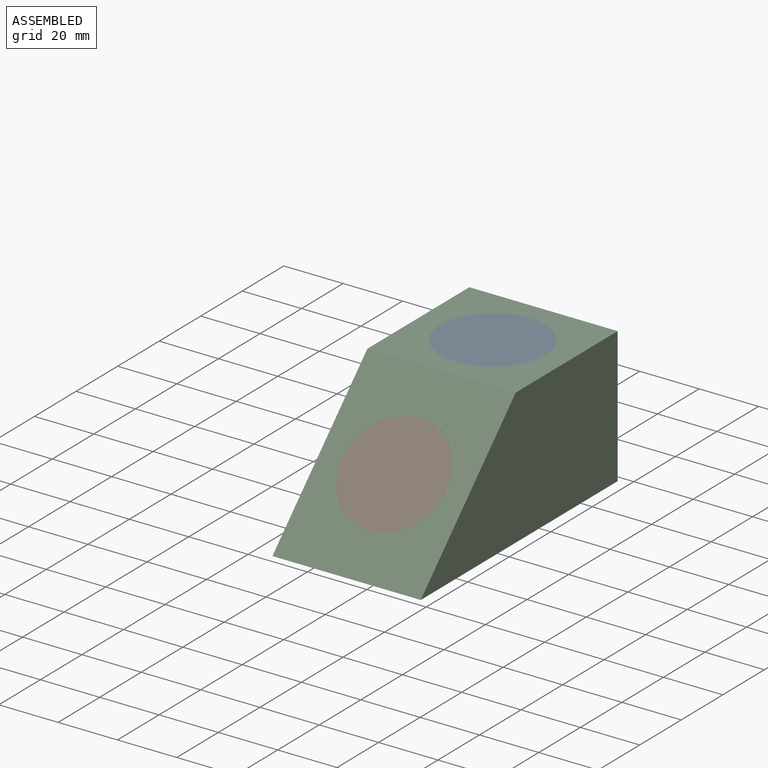
[diagram: assembled view]
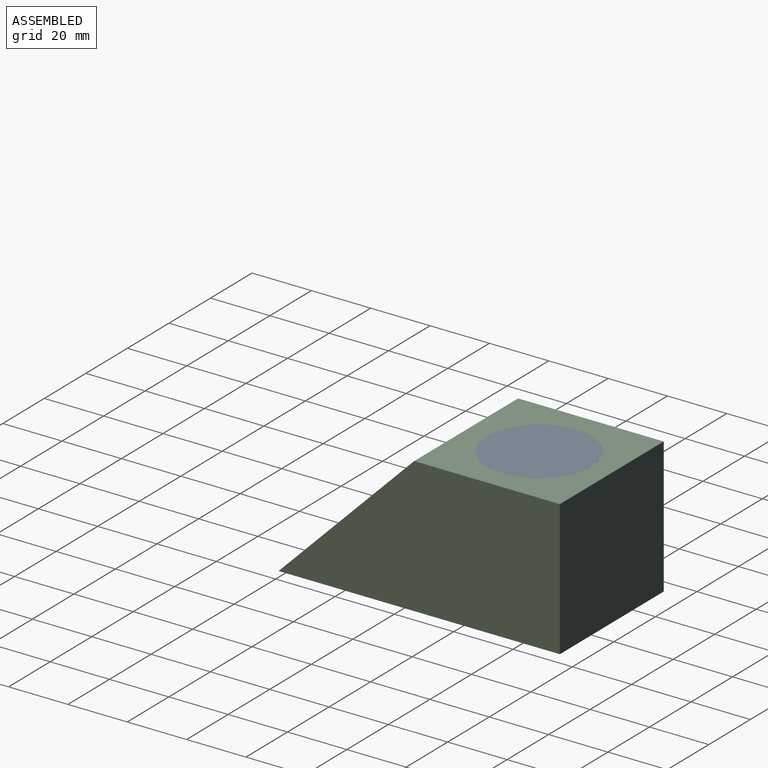
[diagram: assembled view, second angle]
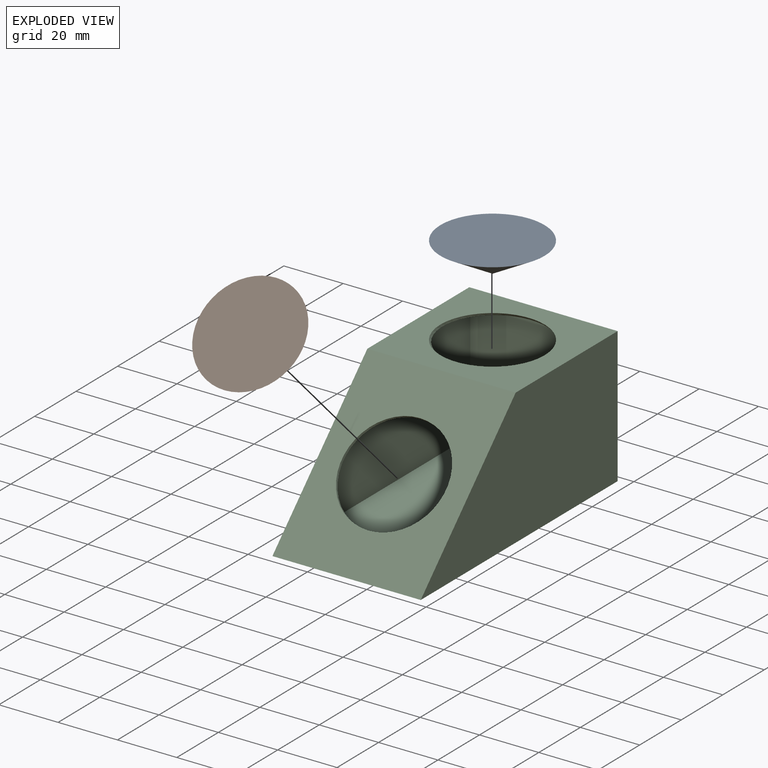
[diagram: exploded view]
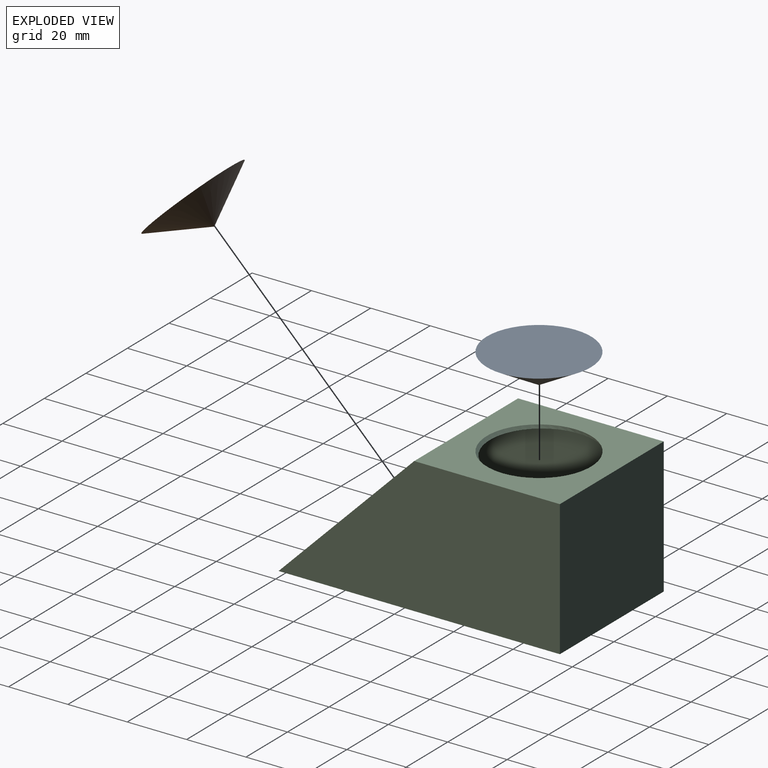
[diagram: exploded view, second angle]
ASSEMBLY  parts=3 mates=2
PART A: 2 faces, bbox 35.1x35.1x10.1 mm
  f0: cone r=17.55mm half-angle=60deg, axis (0,0,1), area 1117.3mm2, adj f1
  f1: plane 35.1x35.1mm, normal (0,0,1), area 967.6mm2, adj f0
PART B: same geometry as A
PART C: 14 faces, bbox 50x94.8x45.7 mm
  f0: plane 50x45.71mm, normal (0,-0.71,0.71), area 2264.4mm2, adj f1,f3,f4,f5,f6
  f1: plane 94.8x50mm, normal (0,0,-1), area 4739.8mm2, adj f0,f2,f4,f5
  f2: plane 50x45.71mm, normal (0,1,0), area 2285.4mm2, adj f1,f3,f4,f5
  f3: plane 50x49.09mm, normal (0,0,1), area 1486.8mm2, adj f0,f2,f4,f5,f7
  f4: plane 94.8x45.71mm, normal (1,0,0), area 3288.4mm2, adj f0,f1,f2,f3
  f5: plane 94.8x45.71mm, normal (-1,0,0), area 3288.4mm2, adj f0,f1,f2,f3
  f6: cylinder r=17.55mm len=35.1mm, axis (0,-0.71,0.71), area 110.3mm2, adj f0,f9
  f7: extruded ~36.1x35.1mm, area 134.1mm2, adj f3,f8
  f8: plane 48.01x47.69mm, normal (0,0,-1), area 1320.1mm2, adj f7,f9,f11,f12,f13
  f9: plane 48x43.71mm, normal (0,0.71,-0.71), area 1999.4mm2, adj f6,f8,f10,f12,f13
  f10: plane 91.38x48mm, normal (0,0,1), area 4386.4mm2, adj f9,f11,f12,f13
  f11: plane 48x43.71mm, normal (0,-1,0), area 2098mm2, adj f8,f10,f12,f13
  f12: plane 91.38x43.71mm, normal (-1,0,0), area 3039mm2, adj f8,f9,f10,f11
  f13: plane 91.38x43.71mm, normal (1,0,0), area 3039mm2, adj f8,f9,f10,f11
PLACE A t=(-6.68,5.53,-6.24)mm
PLACE B rot(axis=(1,0,0),45deg) t=(-6.68,-2.36,-33.06)mm
PLACE C t=(-6.68,5.53,-6.24)mm fixed
MATE fastened B.f0 <-> C.f6  axis (0,-0.71,0.71) through (-6.68,-17.32,16.62)mm
MATE fastened A.f0 <-> C.f3  axis (0,0,1) through (-6.68,30.08,39.47)mm
